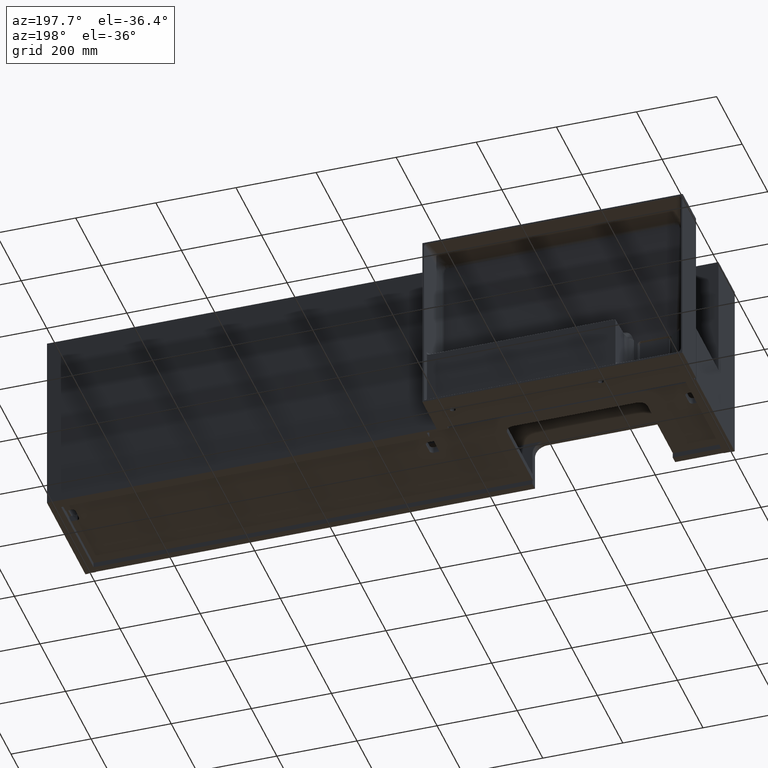
[diagram: clean part render]
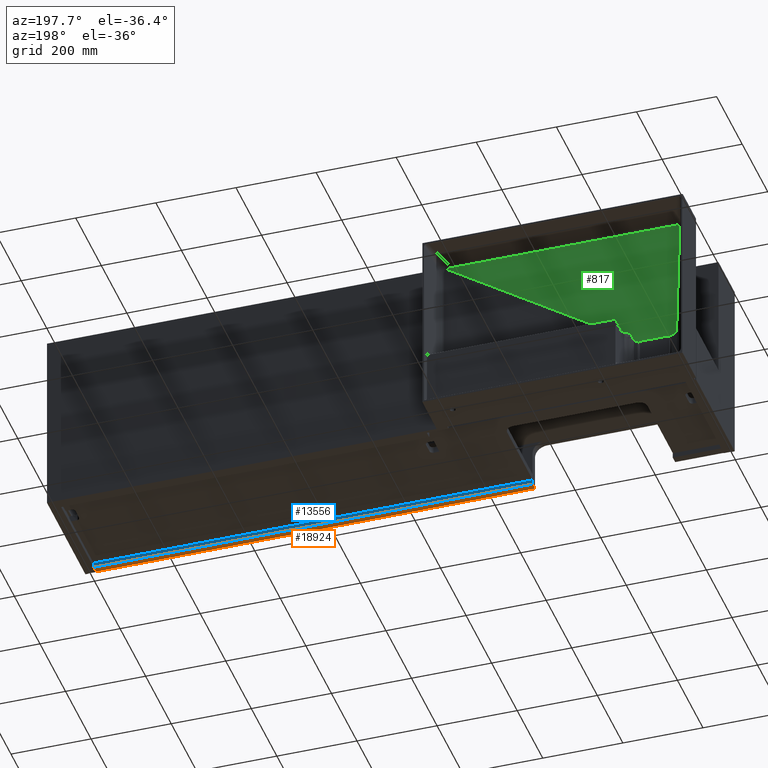
[diagram: same view with three faces highlighted in distinct colors, each labeled with its STEP entity id]
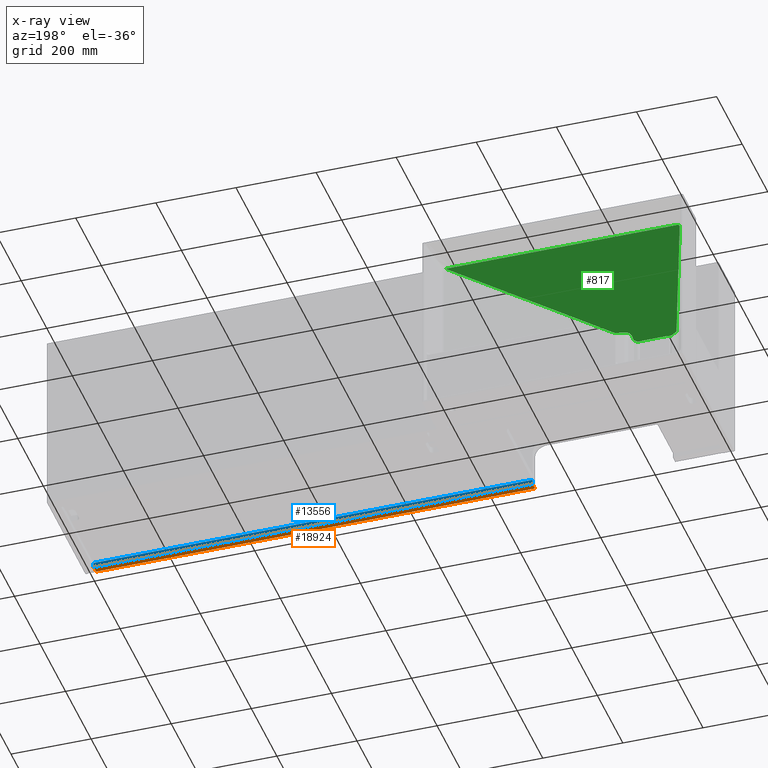
[diagram: x-ray of the same camera — body ghosted, the three highlighted faces saturated]
A machine part, auxiliary view with three faces highlighted in distinct colors.
The next image is the same camera in x-ray (body ghosted, the three faces saturated) — at least one of them is partly hidden behind the body in this view.
Their STEP definitions:

[orange] entity #18924 — the highlighted planar face has unit normal (0, 0, 1).
#126 = EDGE_CURVE ( 'NONE', #17838, #13490, #18997, .T. ) ;
#509 = DIRECTION ( 'NONE',  ( -1.000000000000000000, -0.0000000000000000000, -0.0000000000000000000 ) ) ;
#556 = CARTESIAN_POINT ( 'NONE',  ( 500.0000000000000000, 19.99999999999998934, -470.0000000000000568 ) ) ;
#1368 = ORIENTED_EDGE ( 'NONE', *, *, #3203, .T. ) ;
#2244 = VECTOR ( 'NONE', #18879, 1000.000000000000000 ) ;
#2520 = DIRECTION ( 'NONE',  ( 1.000000000000000000, 0.0000000000000000000, -0.0000000000000000000 ) ) ;
#2918 = VERTEX_POINT ( 'NONE', #16039 ) ;
#3203 = EDGE_CURVE ( 'NONE', #14724, #17838, #10571, .T. ) ;
#3959 = PLANE ( 'NONE',  #6774 ) ;
#4231 = CARTESIAN_POINT ( 'NONE',  ( 500.0000000000000000, 1.000000000000000888, -470.0000000000000568 ) ) ;
#4813 = EDGE_LOOP ( 'NONE', ( #1368, #9861, #14325, #5819 ) ) ;
#5819 = ORIENTED_EDGE ( 'NONE', *, *, #16825, .T. ) ;
#6375 = LINE ( 'NONE', #12262, #18211 ) ;
#6774 = AXIS2_PLACEMENT_3D ( 'NONE', #9850, #15781, #2520 ) ;
#7820 = LINE ( 'NONE', #13723, #9554 ) ;
#9518 = CARTESIAN_POINT ( 'NONE',  ( 29.00000000000002487, 1.000000000000000888, -470.0000000000000000 ) ) ;
#9554 = VECTOR ( 'NONE', #509, 1000.000000000000000 ) ;
#9850 = CARTESIAN_POINT ( 'NONE',  ( 29.00000000000002487, 19.99999999999998934, -470.0000000000000000 ) ) ;
#9861 = ORIENTED_EDGE ( 'NONE', *, *, #126, .T. ) ;
#10571 = LINE ( 'NONE', #9518, #17398 ) ;
#12262 = CARTESIAN_POINT ( 'NONE',  ( 1596.000000000000000, 19.99999999999998934, -470.0000000000000000 ) ) ;
#12312 = DIRECTION ( 'NONE',  ( -1.000000000000000000, -0.0000000000000000000, -0.0000000000000000000 ) ) ;
#13490 = VERTEX_POINT ( 'NONE', #556 ) ;
#13723 = CARTESIAN_POINT ( 'NONE',  ( 29.00000000000002487, 19.99999999999998934, -470.0000000000000000 ) ) ;
#14325 = ORIENTED_EDGE ( 'NONE', *, *, #18696, .F. ) ;
#14724 = VERTEX_POINT ( 'NONE', #16967 ) ;
#15781 = DIRECTION ( 'NONE',  ( 0.0000000000000000000, 0.0000000000000000000, 1.000000000000000000 ) ) ;
#16039 = CARTESIAN_POINT ( 'NONE',  ( 1596.000000000000000, 19.99999999999998934, -470.0000000000000000 ) ) ;
#16825 = EDGE_CURVE ( 'NONE', #2918, #14724, #6375, .T. ) ;
#16967 = CARTESIAN_POINT ( 'NONE',  ( 1596.000000000000000, 1.000000000000000888, -470.0000000000000000 ) ) ;
#17225 = FACE_OUTER_BOUND ( 'NONE', #4813, .T. ) ;
#17398 = VECTOR ( 'NONE', #12312, 1000.000000000000000 ) ;
#17838 = VERTEX_POINT ( 'NONE', #4231 ) ;
#18211 = VECTOR ( 'NONE', #18214, 1000.000000000000000 ) ;
#18214 = DIRECTION ( 'NONE',  ( -0.0000000000000000000, -1.000000000000000000, -0.0000000000000000000 ) ) ;
#18696 = EDGE_CURVE ( 'NONE', #2918, #13490, #7820, .T. ) ;
#18879 = DIRECTION ( 'NONE',  ( -0.0000000000000000000, 1.000000000000000000, -0.0000000000000000000 ) ) ;
#18897 = CARTESIAN_POINT ( 'NONE',  ( 500.0000000000000000, 0.9989999999999998881, -470.0000000000000568 ) ) ;
#18924 = ADVANCED_FACE ( 'NONE', ( #17225 ), #3959, .F. ) ;
#18997 = LINE ( 'NONE', #18897, #2244 ) ;

[blue] entity #13556 — the highlighted planar face has unit normal (-0, 1, 0).
#493 = EDGE_CURVE ( 'NONE', #11612, #13490, #14347, .T. ) ;
#509 = DIRECTION ( 'NONE',  ( -1.000000000000000000, -0.0000000000000000000, -0.0000000000000000000 ) ) ;
#556 = CARTESIAN_POINT ( 'NONE',  ( 500.0000000000000000, 19.99999999999998934, -470.0000000000000568 ) ) ;
#692 = CARTESIAN_POINT ( 'NONE',  ( 29.00000000000002487, 19.99999999999998934, -457.4999999999999432 ) ) ;
#1201 = ORIENTED_EDGE ( 'NONE', *, *, #493, .F. ) ;
#2414 = AXIS2_PLACEMENT_3D ( 'NONE', #3535, #9423, #15350 ) ;
#2558 = VECTOR ( 'NONE', #13338, 1000.000000000000000 ) ;
#2918 = VERTEX_POINT ( 'NONE', #16039 ) ;
#3535 = CARTESIAN_POINT ( 'NONE',  ( 0.0000000000000000000, 19.99999999999998934, 0.0000000000000000000 ) ) ;
#4237 = CARTESIAN_POINT ( 'NONE',  ( 1596.000000000000000, 19.99999999999998934, -470.0000000000000000 ) ) ;
#4863 = CARTESIAN_POINT ( 'NONE',  ( 1596.000000000000000, 19.99999999999998934, -457.5000000000001137 ) ) ;
#6557 = DIRECTION ( 'NONE',  ( -1.000000000000000000, -0.0000000000000000000, 1.062753373923251207E-16 ) ) ;
#6717 = VECTOR ( 'NONE', #6557, 1000.000000000000000 ) ;
#7348 = EDGE_LOOP ( 'NONE', ( #1201, #12870, #18186, #14021 ) ) ;
#7820 = LINE ( 'NONE', #13723, #9554 ) ;
#9423 = DIRECTION ( 'NONE',  ( -0.0000000000000000000, 1.000000000000000000, 0.0000000000000000000 ) ) ;
#9554 = VECTOR ( 'NONE', #509, 1000.000000000000000 ) ;
#9965 = VERTEX_POINT ( 'NONE', #4863 ) ;
#10122 = DIRECTION ( 'NONE',  ( -0.0000000000000000000, -0.0000000000000000000, -1.000000000000000000 ) ) ;
#10860 = FACE_OUTER_BOUND ( 'NONE', #7348, .T. ) ;
#11612 = VERTEX_POINT ( 'NONE', #18306 ) ;
#11988 = VECTOR ( 'NONE', #10122, 1000.000000000000000 ) ;
#12870 = ORIENTED_EDGE ( 'NONE', *, *, #14179, .F. ) ;
#13338 = DIRECTION ( 'NONE',  ( -0.0000000000000000000, -0.0000000000000000000, -1.000000000000000000 ) ) ;
#13490 = VERTEX_POINT ( 'NONE', #556 ) ;
#13556 = ADVANCED_FACE ( 'NONE', ( #10860 ), #16793, .T. ) ;
#13723 = CARTESIAN_POINT ( 'NONE',  ( 29.00000000000002487, 19.99999999999998934, -470.0000000000000000 ) ) ;
#13903 = LINE ( 'NONE', #692, #6717 ) ;
#14021 = ORIENTED_EDGE ( 'NONE', *, *, #18696, .T. ) ;
#14179 = EDGE_CURVE ( 'NONE', #9965, #11612, #13903, .T. ) ;
#14227 = CARTESIAN_POINT ( 'NONE',  ( 500.0000000000000000, 19.99999999999998934, -470.0000000000000568 ) ) ;
#14347 = LINE ( 'NONE', #14227, #2558 ) ;
#15350 = DIRECTION ( 'NONE',  ( 0.0000000000000000000, -0.0000000000000000000, 1.000000000000000000 ) ) ;
#16039 = CARTESIAN_POINT ( 'NONE',  ( 1596.000000000000000, 19.99999999999998934, -470.0000000000000000 ) ) ;
#16793 = PLANE ( 'NONE',  #2414 ) ;
#17168 = EDGE_CURVE ( 'NONE', #9965, #2918, #17510, .T. ) ;
#17510 = LINE ( 'NONE', #4237, #11988 ) ;
#18186 = ORIENTED_EDGE ( 'NONE', *, *, #17168, .T. ) ;
#18306 = CARTESIAN_POINT ( 'NONE',  ( 500.0000000000000000, 19.99999999999998934, -457.5000000000000000 ) ) ;
#18696 = EDGE_CURVE ( 'NONE', #2918, #13490, #7820, .T. ) ;

[green] entity #817 — the highlighted planar face has unit normal (0, 0.9989, -0.0471).
#21 = EDGE_CURVE ( 'NONE', #4707, #617, #5941, .T. ) ;
#23 = CARTESIAN_POINT ( 'NONE',  ( 31.65942971531320183, 337.4424095261252887, -36.93211820686300939 ) ) ;
#108 = CARTESIAN_POINT ( 'NONE',  ( 198.8552613548531269, 324.8220531439237675, -304.8234223945265171 ) ) ;
#116 = CARTESIAN_POINT ( 'NONE',  ( 36.86019171625553525, 337.7091892495751040, -31.26920617162236837 ) ) ;
#180 = CARTESIAN_POINT ( 'NONE',  ( 605.7270638256289885, 337.7249613011945257, -30.93441408255048586 ) ) ;
#202 = CARTESIAN_POINT ( 'NONE',  ( 184.6771654203995752, 324.6808296650964962, -307.8211619812079789 ) ) ;
#211 = CARTESIAN_POINT ( 'NONE',  ( 39.82943733341980419, 337.7231732248104663, -30.97236943816612253 ) ) ;
#264 = CARTESIAN_POINT ( 'NONE',  ( 42.27673548064053932, 328.3127408494356700, -230.7268712654124556 ) ) ;
#496 = DIRECTION ( 'NONE',  ( -0.8356163984689591873, -0.02584948056443473960, -0.5487048741940557806 ) ) ;
#515 = CARTESIAN_POINT ( 'NONE',  ( 607.2514038758652077, 337.7249613011945257, -30.93441408255048941 ) ) ;
#617 = VERTEX_POINT ( 'NONE', #9946 ) ;
#661 = CARTESIAN_POINT ( 'NONE',  ( 151.9093494116067973, 323.4650869982647237, -333.6276351671356792 ) ) ;
#727 = CARTESIAN_POINT ( 'NONE',  ( 136.0822418297966578, 322.9994056883926987, -343.5126154053624532 ) ) ;
#759 = EDGE_CURVE ( 'NONE', #5999, #9667, #15935, .T. ) ;
#784 = VERTEX_POINT ( 'NONE', #13356 ) ;
#817 = ADVANCED_FACE ( 'NONE', ( #11721 ), #13651, .T. ) ;
#871 = CARTESIAN_POINT ( 'NONE',  ( 614.6151535243348007, 337.6820198651380451, -31.84592854065964573 ) ) ;
#950 = CARTESIAN_POINT ( 'NONE',  ( 43.58903264293867608, 323.4151811651100843, -334.6869823302010900 ) ) ;
#1037 = LINE ( 'NONE', #6904, #9399 ) ;
#1343 = EDGE_CURVE ( 'NONE', #11090, #17615, #18734, .T. ) ;
#1384 = CARTESIAN_POINT ( 'NONE',  ( 31.44963585070672352, 337.2969522031865495, -40.01972926677356668 ) ) ;
#1430 = ORIENTED_EDGE ( 'NONE', *, *, #11484, .T. ) ;
#1476 = B_SPLINE_CURVE_WITH_KNOTS ( 'NONE', 3,
 ( #14963, #1714, #7580, #13483, #264, #6143, #12027 ),
 .UNSPECIFIED., .F., .F.,
 ( 4, 3, 4 ),
 ( 0.1670895822075200154, 0.1769420931094206617, 0.4596356071045462066 ),
 .UNSPECIFIED. ) ;
#1479 = CARTESIAN_POINT ( 'NONE',  ( 31.64921863133575286, 337.4389033807434544, -37.00654287686315058 ) ) ;
#1575 = CARTESIAN_POINT ( 'NONE',  ( 35.52471648068633669, 337.6951683208129680, -31.56682731466130321 ) ) ;
#1623 = ORIENTED_EDGE ( 'NONE', *, *, #4760, .T. ) ;
#1633 = CARTESIAN_POINT ( 'NONE',  ( 230.1540286831982769, 337.7249613011945257, -30.93441408255048941 ) ) ;
#1657 = CARTESIAN_POINT ( 'NONE',  ( 191.0590375558673202, 324.7265386575342063, -306.8509008232537099 ) ) ;
#1666 = CARTESIAN_POINT ( 'NONE',  ( 39.62838415155368210, 337.7227705156498700, -30.98091771358729218 ) ) ;
#1693 = CARTESIAN_POINT ( 'NONE',  ( 140.0102767966331498, 323.0000000000000000, -343.4999999999999432 ) ) ;
#1714 = CARTESIAN_POINT ( 'NONE',  ( 43.54762550520556630, 323.5697147069264474, -331.4067110918793446 ) ) ;
#1785 = LINE ( 'NONE', #7656, #12228 ) ;
#2037 = CARTESIAN_POINT ( 'NONE',  ( 947.2733949437900947, 323.0000000000000000, -343.4999999999999432 ) ) ;
#2076 = VERTEX_POINT ( 'NONE', #12131 ) ;
#2083 = ORIENTED_EDGE ( 'NONE', *, *, #5906, .T. ) ;
#2094 = CARTESIAN_POINT ( 'NONE',  ( 152.6018373482059189, 323.5696781237315349, -331.4074876404581573 ) ) ;
#2173 = CARTESIAN_POINT ( 'NONE',  ( 136.0896772982212042, 322.9996506961233536, -343.5074146456903463 ) ) ;
#2283 = CARTESIAN_POINT ( 'NONE',  ( 65.01027679663317826, 323.0448930965661134, -342.5470577990107586 ) ) ;
#2315 = CARTESIAN_POINT ( 'NONE',  ( 614.7307329588620632, 337.6904979936178961, -31.66596397969334475 ) ) ;
#2830 = CARTESIAN_POINT ( 'NONE',  ( 31.44993942179330304, 337.2059713113148973, -41.95097344416078755 ) ) ;
#2926 = CARTESIAN_POINT ( 'NONE',  ( 31.57204790205884493, 337.4084254359669899, -37.65349579386656131 ) ) ;
#3016 = CARTESIAN_POINT ( 'NONE',  ( 33.06521418116045652, 337.6280492918525056, -32.99155762016702909 ) ) ;
#3101 = CARTESIAN_POINT ( 'NONE',  ( 194.2290445181041321, 324.7556448546313845, -306.2330658854564263 ) ) ;
#3109 = CARTESIAN_POINT ( 'NONE',  ( 38.11723292552262166, 337.7179151106905692, -31.08398300964589467 ) ) ;
#3135 = CARTESIAN_POINT ( 'NONE',  ( 165.5328698598229664, 324.5060946015510694, -311.5302493193846658 ) ) ;
#3299 = CARTESIAN_POINT ( 'NONE',  ( 57.01027679663312142, 323.0000000000000000, -343.4999999999999432 ) ) ;
#3336 = CARTESIAN_POINT ( 'NONE',  ( 160.6749666268192129, 324.3425752415761281, -315.0012618072242390 ) ) ;
#3427 = CARTESIAN_POINT ( 'NONE',  ( 160.9093358001838396, 324.3526674264662120, -314.7870357988255705 ) ) ;
#3543 = CARTESIAN_POINT ( 'NONE',  ( 153.3386852661365367, 323.7115601592879557, -328.3957689223034890 ) ) ;
#3617 = CARTESIAN_POINT ( 'NONE',  ( 136.1059053335791589, 322.9999044965674102, -343.5020272437901099 ) ) ;
#3634 = CARTESIAN_POINT ( 'NONE',  ( 150.2991523776123302, 323.3203450831405235, -336.7000603220984090 ) ) ;
#3915 = ORIENTED_EDGE ( 'NONE', *, *, #14089, .T. ) ;
#3921 = CARTESIAN_POINT ( 'NONE',  ( 42.74859612466858039, 337.7249613011945257, -30.93441408255037572 ) ) ;
#4078 = VERTEX_POINT ( 'NONE', #12860 ) ;
#4103 = DIRECTION ( 'NONE',  ( -0.8356163984689591873, -0.02584948056443473960, -0.5487048741940557806 ) ) ;
#4109 = EDGE_CURVE ( 'NONE', #2076, #15830, #6582, .T. ) ;
#4195 = CARTESIAN_POINT ( 'NONE',  ( 614.7307329588620632, 337.6904979936178961, -31.66596397969334475 ) ) ;
#4294 = CARTESIAN_POINT ( 'NONE',  ( 613.7326041029118642, 337.7061628689490931, -31.33344691319027575 ) ) ;
#4360 = CARTESIAN_POINT ( 'NONE',  ( 31.45493045476341365, 337.3104557418099603, -39.73309072318618718 ) ) ;
#4379 = CARTESIAN_POINT ( 'NONE',  ( 612.4860492557526186, 337.7163766206677451, -31.11664041536960923 ) ) ;
#4456 = CARTESIAN_POINT ( 'NONE',  ( 32.81385612067034430, 337.6126847321252171, -33.31769991116124885 ) ) ;
#4477 = CARTESIAN_POINT ( 'NONE',  ( 610.9881485329336783, 337.7211485507808675, -31.01534703324468012 ) ) ;
#4546 = CARTESIAN_POINT ( 'NONE',  ( 196.8433714277376794, 324.7865976977785181, -305.5760323383929062 ) ) ;
#4553 = CARTESIAN_POINT ( 'NONE',  ( 37.05224080859341740, 337.7107519828326758, -31.23603415668612371 ) ) ;
#4644 = CARTESIAN_POINT ( 'NONE',  ( 173.9812721945679925, 324.6229568114036965, -309.0496244574869706 ) ) ;
#4653 = CARTESIAN_POINT ( 'NONE',  ( 40.48605653875704746, 337.7243832176263822, -30.94668501661392312 ) ) ;
#4707 = VERTEX_POINT ( 'NONE', #515 ) ;
#4760 = EDGE_CURVE ( 'NONE', #12931, #2076, #9593, .T. ) ;
#4957 = CARTESIAN_POINT ( 'NONE',  ( 947.2733949437900947, 323.0000000000000000, -343.4999999999999432 ) ) ;
#5058 = CARTESIAN_POINT ( 'NONE',  ( 136.1265005401955932, 323.0000000000000000, -343.4999999999999432 ) ) ;
#5076 = CARTESIAN_POINT ( 'NONE',  ( 150.9887181297819723, 323.3646822769986784, -335.7589182238183980 ) ) ;
#5116 = CARTESIAN_POINT ( 'NONE',  ( 60.88717117101566600, 323.0000000000000000, -343.4999999999999432 ) ) ;
#5148 = CARTESIAN_POINT ( 'NONE',  ( 173.9812721945679925, 324.6229568114036965, -309.0496244574869706 ) ) ;
#5151 = CARTESIAN_POINT ( 'NONE',  ( 136.0781949904821886, 322.9991501576077439, -343.5180395370722977 ) ) ;
#5640 = CARTESIAN_POINT ( 'NONE',  ( 610.9879424011658102, 337.7211491971753503, -31.01533331228320378 ) ) ;
#5650 = ORIENTED_EDGE ( 'NONE', *, *, #12754, .T. ) ;
#5709 = CARTESIAN_POINT ( 'NONE',  ( 173.9812721945679925, 324.6229568114036965, -309.0496244574869706 ) ) ;
#5742 = CARTESIAN_POINT ( 'NONE',  ( 610.9848112725181863, 337.7211591309978189, -31.01512244782314198 ) ) ;
#5743 = DIRECTION ( 'NONE',  ( 0.0000000000000000000, 0.9988921681304054889, -0.04705779901076869581 ) ) ;
#5818 = CARTESIAN_POINT ( 'NONE',  ( 31.45463975731429329, 337.3098456733877128, -39.74604059720934401 ) ) ;
#5842 = CARTESIAN_POINT ( 'NONE',  ( 610.9801094671159944, 337.7211740171513839, -31.01480646062110580 ) ) ;
#5843 = DIRECTION ( 'NONE',  ( 0.0000000000000000000, 0.04705779901076868887, 0.9988921681304053779 ) ) ;
#5868 = CARTESIAN_POINT ( 'NONE',  ( 132.0102767966330646, 323.0448930965661134, -342.5470577990107586 ) ) ;
#5869 = ORIENTED_EDGE ( 'NONE', *, *, #759, .T. ) ;
#5906 = EDGE_CURVE ( 'NONE', #13899, #784, #16798, .T. ) ;
#5909 = CARTESIAN_POINT ( 'NONE',  ( 31.79138293893016254, 337.4867901769694072, -35.99005365057880113 ) ) ;
#5941 = B_SPLINE_CURVE_WITH_KNOTS ( 'NONE', 3,
 ( #10079, #9981, #8822, #8722, #8625, #8528, #7267, #7168, #7072, #5842, #5742, #5640, #4477, #4379, #4294, #4195 ),
 .UNSPECIFIED., .F., .F.,
 ( 4, 1, 1, 1, 1, 1, 1, 1, 1, 2, 2, 4 ),
 ( 0.0000000000000000000, 0.2499999999947719598, 0.3749999999921356797, 0.4374999999908175119, 0.4687499999901583725, 0.4843749999898610548, 0.4921874999897125069, 0.4960937499896722058, 0.4980468749896863057, 0.4990234374897277170, 0.4999999999897691838, 1.000000000000000000 ),
 .UNSPECIFIED. ) ;
#5969 = CARTESIAN_POINT ( 'NONE',  ( 153.3386852661365367, 323.7115601592879557, -328.3957689223034890 ) ) ;
#5994 = CARTESIAN_POINT ( 'NONE',  ( 198.3646758481632162, 324.8115746191032827, -305.0458492099912178 ) ) ;
#5999 = VERTEX_POINT ( 'NONE', #5148 ) ;
#6003 = CARTESIAN_POINT ( 'NONE',  ( 36.96316991177909728, 337.7100393581155799, -31.25116098504260265 ) ) ;
#6064 = CARTESIAN_POINT ( 'NONE',  ( 606.4892338507468139, 337.7249613011945257, -30.93441408255048231 ) ) ;
#6086 = CARTESIAN_POINT ( 'NONE',  ( 182.5415527639360107, 324.6680791695545736, -308.0918157390207739 ) ) ;
#6095 = CARTESIAN_POINT ( 'NONE',  ( 39.84183533638114483, 337.7231963920153817, -30.97187766974809975 ) ) ;
#6143 = CARTESIAN_POINT ( 'NONE',  ( 32.64613986560082992, 332.7416904846292596, -136.7139085548854780 ) ) ;
#6237 = AXIS2_PLACEMENT_3D ( 'NONE', #4957, #5743, #5843 ) ;
#6406 = CARTESIAN_POINT ( 'NONE',  ( 156.6789448886715661, 324.1125682670271431, -319.8836016174569181 ) ) ;
#6521 = CARTESIAN_POINT ( 'NONE',  ( 151.6379731480167834, 323.4309747735022142, -334.3517326572265915 ) ) ;
#6524 = EDGE_CURVE ( 'NONE', #15830, #16765, #7127, .T. ) ;
#6582 = B_SPLINE_CURVE_WITH_KNOTS ( 'NONE', 3,
 ( #12769, #12743, #12693, #12675, #12582, #12553, #12482, #12459, #12438, #12395, #12350, #12282, #12255 ),
 .UNSPECIFIED., .F., .F.,
 ( 4, 3, 3, 3, 4 ),
 ( 0.0000000000000000000, 8.915617227922920056E-06, 2.010108594511868696E-05, 4.157102085746201023E-05, 6.097989384569849384E-05 ),
 .UNSPECIFIED. ) ;
#6597 = CARTESIAN_POINT ( 'NONE',  ( 136.0803799028212495, 322.9993131088632481, -343.5145805836912132 ) ) ;
#6736 = CARTESIAN_POINT ( 'NONE',  ( 614.5730550858115748, 337.6804219453646283, -31.87984745698001277 ) ) ;
#6763 = CARTESIAN_POINT ( 'NONE',  ( 172.6972624792435624, 324.6167240759052106, -309.1819262396854242 ) ) ;
#6904 = CARTESIAN_POINT ( 'NONE',  ( 309.2805134373838882, 315.1961146394703519, -509.1524557350587656 ) ) ;
#6948 = CARTESIAN_POINT ( 'NONE',  ( 170.8233128626981738, 324.6005407954646671, -309.5254474503369124 ) ) ;
#7006 = CARTESIAN_POINT ( 'NONE',  ( 60.94268838823935397, 322.9991196170648777, -343.5186878187531647 ) ) ;
#7072 = CARTESIAN_POINT ( 'NONE',  ( 610.9691028008342073, 337.7212086494498635, -31.01407132356525409 ) ) ;
#7127 = LINE ( 'NONE', #13021, #13984 ) ;
#7168 = CARTESIAN_POINT ( 'NONE',  ( 610.9469463202289035, 337.7212775058079046, -31.01260971511728926 ) ) ;
#7246 = CARTESIAN_POINT ( 'NONE',  ( 31.45212232839229927, 337.3040158536455806, -39.86978971859588938 ) ) ;
#7267 = CARTESIAN_POINT ( 'NONE',  ( 610.9020607668498997, 337.7214135855660970, -31.00972116087522323 ) ) ;
#7268 = CARTESIAN_POINT ( 'NONE',  ( 157.1944950747820826, 324.1510661865222005, -319.0664093330512401 ) ) ;
#7295 = CARTESIAN_POINT ( 'NONE',  ( 136.0778652050268533, 322.9991196170648777, -343.5186878187531647 ) ) ;
#7340 = EDGE_CURVE ( 'NONE', #4078, #11217, #11442, .T. ) ;
#7344 = CARTESIAN_POINT ( 'NONE',  ( 31.65443224008954815, 337.4407030556049563, -36.96834132128434192 ) ) ;
#7425 = CARTESIAN_POINT ( 'NONE',  ( 199.3272960926468897, 324.8349497930412326, -304.5496662463541497 ) ) ;
#7434 = CARTESIAN_POINT ( 'NONE',  ( 36.26356644346566327, 337.7036647164929946, -31.38647499728559254 ) ) ;
#7499 = CARTESIAN_POINT ( 'NONE',  ( 417.5594612418547626, 337.7249613011945257, -30.93441408255048941 ) ) ;
#7522 = CARTESIAN_POINT ( 'NONE',  ( 188.9359916805834985, 324.7100343581348625, -307.2012362778855845 ) ) ;
#7533 = CARTESIAN_POINT ( 'NONE',  ( 39.74294081932458766, 337.7230061920806179, -30.97591502867769009 ) ) ;
#7580 = CARTESIAN_POINT ( 'NONE',  ( 43.50621836747236415, 323.7242482487427537, -328.1264398535574287 ) ) ;
#7656 = CARTESIAN_POINT ( 'NONE',  ( 65.01027679663317826, 323.0448930965661134, -342.5470577990107586 ) ) ;
#7891 = ORIENTED_EDGE ( 'NONE', *, *, #8503, .T. ) ;
#7903 = DIRECTION ( 'NONE',  ( -1.000000000000000000, 0.0000000000000000000, 0.0000000000000000000 ) ) ;
#7960 = CARTESIAN_POINT ( 'NONE',  ( 152.3914831439631428, 323.5344834360790855, -332.1545624844750932 ) ) ;
#7977 = VERTEX_POINT ( 'NONE', #17016 ) ;
#7990 = EDGE_CURVE ( 'NONE', #617, #11090, #18969, .T. ) ;
#8029 = VERTEX_POINT ( 'NONE', #15764 ) ;
#8030 = CARTESIAN_POINT ( 'NONE',  ( 136.0868194003566600, 322.9995765522121474, -343.5089884926148329 ) ) ;
#8120 = VECTOR ( 'NONE', #4103, 1000.000000000000114 ) ;
#8182 = CARTESIAN_POINT ( 'NONE',  ( 614.7148602358179232, 337.6880379785537230, -31.71818252439097208 ) ) ;
#8503 = EDGE_CURVE ( 'NONE', #16765, #14350, #1037, .T. ) ;
#8528 = CARTESIAN_POINT ( 'NONE',  ( 610.8099992914212635, 337.7216792132541059, -31.00408270300662750 ) ) ;
#8530 = CARTESIAN_POINT ( 'NONE',  ( 65.01027679663317826, 323.0448930965661134, -342.5470577990107586 ) ) ;
#8583 = CARTESIAN_POINT ( 'NONE',  ( 167.7033499628446407, 324.5512903870404671, -310.5708819646215488 ) ) ;
#8625 = CARTESIAN_POINT ( 'NONE',  ( 610.6167148658776114, 337.7221843413141755, -30.99336038973169138 ) ) ;
#8696 = CARTESIAN_POINT ( 'NONE',  ( 31.44346606484955231, 337.2455879155479010, -41.11003492752288935 ) ) ;
#8722 = CARTESIAN_POINT ( 'NONE',  ( 610.1935001160476304, 337.7230900881704656, -30.97413417303106087 ) ) ;
#8760 = ORIENTED_EDGE ( 'NONE', *, *, #4109, .T. ) ;
#8802 = CARTESIAN_POINT ( 'NONE',  ( 31.61432034613362418, 337.4260890056385733, -37.27855260109164703 ) ) ;
#8822 = CARTESIAN_POINT ( 'NONE',  ( 609.2004870214182120, 337.7244835448296385, -30.94455537902636166 ) ) ;
#8887 = B_SPLINE_CURVE_WITH_KNOTS ( 'NONE', 3,
 ( #14875, #1633, #7499, #13398, #180, #6064, #11949 ),
 .UNSPECIFIED., .F., .F.,
 ( 4, 3, 4 ),
 ( -0.8152679471926076449, -0.2530516495166379443, -0.2507651394412844237 ),
 .UNSPECIFIED. ) ;
#8899 = CARTESIAN_POINT ( 'NONE',  ( 33.47409499779444531, 337.6497692400748747, -32.53051000154228944 ) ) ;
#8979 = CARTESIAN_POINT ( 'NONE',  ( 193.7021115397274968, 324.7503751772954956, -306.3449249084007988 ) ) ;
#8989 = CARTESIAN_POINT ( 'NONE',  ( 38.95957256948083369, 337.7210452700792302, -31.01753936451011384 ) ) ;
#9399 = VECTOR ( 'NONE', #12787, 1000.000000000000114 ) ;
#9429 = CARTESIAN_POINT ( 'NONE',  ( 153.1702101777403584, 323.6758977246932432, -329.1527725935775379 ) ) ;
#9506 = CARTESIAN_POINT ( 'NONE',  ( 136.0989864779814127, 322.9998379681751430, -343.5034394366964534 ) ) ;
#9526 = CARTESIAN_POINT ( 'NONE',  ( 150.1562415174112175, 323.3138616215977663, -336.8376842461541401 ) ) ;
#9593 =( BOUNDED_CURVE ( )  B_SPLINE_CURVE ( 3, ( #2283, #18452, #11062, #7006 ),
 .UNSPECIFIED., .F., .F. ) 
 B_SPLINE_CURVE_WITH_KNOTS ( ( 4, 4 ),
 ( 0.0000000000000000000, 0.4689549082927684243 ),
 .UNSPECIFIED. ) 
 CURVE ( )  GEOMETRIC_REPRESENTATION_ITEM ( )  RATIONAL_B_SPLINE_CURVE ( ( 1.000000000000000000, 0.9817572531261227198, 0.9817572531261227198, 1.000000000000000000 ) ) 
 REPRESENTATION_ITEM ( '' )  );
#9667 = VERTEX_POINT ( 'NONE', #5969 ) ;
#9946 = CARTESIAN_POINT ( 'NONE',  ( 614.7307329588620632, 337.6904979936178961, -31.66596397969334475 ) ) ;
#9981 = CARTESIAN_POINT ( 'NONE',  ( 608.0980467775013949, 337.7249613013017324, -30.93441408027375061 ) ) ;
#10079 = CARTESIAN_POINT ( 'NONE',  ( 607.2514038758652077, 337.7249613011945257, -30.93441408255048941 ) ) ;
#10111 = VECTOR ( 'NONE', #7903, 1000.000000000000000 ) ;
#10225 = CARTESIAN_POINT ( 'NONE',  ( 166.9805683553175015, 324.5369300935274168, -310.8757067763182249 ) ) ;
#10243 = CARTESIAN_POINT ( 'NONE',  ( 31.46718212441191298, 337.3357435706770389, -39.19630798503469293 ) ) ;
#10259 = CARTESIAN_POINT ( 'NONE',  ( 136.0778652050268533, 322.9991196170648777, -343.5186878187531647 ) ) ;
#10342 = CARTESIAN_POINT ( 'NONE',  ( 32.93843571188575226, 337.6205960802620325, -33.14976635159611362 ) ) ;
#10431 = CARTESIAN_POINT ( 'NONE',  ( 195.8048643806829148, 324.7731144977070699, -305.8622391571529420 ) ) ;
#10440 = CARTESIAN_POINT ( 'NONE',  ( 37.06089926897163167, 337.7108201647723149, -31.23458686405577822 ) ) ;
#10513 = CARTESIAN_POINT ( 'NONE',  ( 168.7281519838337545, 324.5697004915298294, -310.1800921364654187 ) ) ;
#10537 = CARTESIAN_POINT ( 'NONE',  ( 41.44946198263772885, 337.7249613013299268, -30.93441407967685208 ) ) ;
#10555 = CARTESIAN_POINT ( 'NONE',  ( 156.7658629624830269, 324.1191833721571243, -319.7431833054127992 ) ) ;
#10656 = CARTESIAN_POINT ( 'NONE',  ( 153.3386852661365367, 323.7115601592879557, -328.3957689223034890 ) ) ;
#10665 = CARTESIAN_POINT ( 'NONE',  ( 162.1100358212860897, 324.4011164043857889, -313.7586131863121182 ) ) ;
#10750 = CARTESIAN_POINT ( 'NONE',  ( 156.5240488746704841, 324.1005293085399330, -320.1391516346337767 ) ) ;
#10765 = EDGE_CURVE ( 'NONE', #14350, #8029, #1476, .T. ) ;
#10905 = ORIENTED_EDGE ( 'NONE', *, *, #10765, .T. ) ;
#10948 = CARTESIAN_POINT ( 'NONE',  ( 136.1195970704762601, 322.9999859263438680, -343.5002987403824477 ) ) ;
#10951 = CARTESIAN_POINT ( 'NONE',  ( 158.2793953884630014, 324.2250485136340785, -317.4959923419093570 ) ) ;
#10967 = CARTESIAN_POINT ( 'NONE',  ( 150.6696253894093047, 323.3415801710642086, -336.2493047945955027 ) ) ;
#10973 = CARTESIAN_POINT ( 'NONE',  ( 160.5572078355069721, 324.3373967013740184, -315.1111862694599495 ) ) ;
#10977 = B_SPLINE_CURVE_WITH_KNOTS ( 'NONE', 3,
 ( #7425, #13322, #108, #5994, #11873, #17817, #4546, #10431, #16375, #3101, #8979, #14899, #1657, #7522, #13422, #202, #6086, #11973, #17919, #4644 ),
 .UNSPECIFIED., .F., .F.,
 ( 4, 2, 2, 2, 2, 2, 2, 2, 2, 4 ),
 ( 0.0000000000000000000, 0.0008055719474761910805, 0.001611143894952382161, 0.003222287789904821568, 0.004833431684857261192, 0.006444575579809700382, 0.009666863369714499832, 0.01288915115961929841, 0.01933372673942889558, 0.02577830231923849275 ),
 .UNSPECIFIED. ) ;
#10986 = VERTEX_POINT ( 'NONE', #3921 ) ;
#11044 = CARTESIAN_POINT ( 'NONE',  ( 136.0778652050268533, 322.9991196170648777, -343.5186878187531647 ) ) ;
#11062 = CARTESIAN_POINT ( 'NONE',  ( 62.20930800674245376, 323.0293517532738861, -342.8769526607152898 ) ) ;
#11090 = VERTEX_POINT ( 'NONE', #12968 ) ;
#11217 = VERTEX_POINT ( 'NONE', #1693 ) ;
#11243 = EDGE_CURVE ( 'NONE', #784, #12931, #1785, .T. ) ;
#11354 = B_SPLINE_CURVE_WITH_KNOTS ( 'NONE', 3,
 ( #16092, #2830, #8696, #14623, #1384, #7246, #13142, #19090, #5818, #11699, #17629, #4360, #10243, #16185, #2926, #8802, #14722, #1479, #7344, #13244, #23, #5909, #11786, #17721, #4456, #10342, #16282, #3016, #8899, #14822, #1575, #7434, #13333, #116, #6003, #11880, #17824, #4553, #10440, #16383, #3109, #8989, #14910, #1666, #7533, #13431, #211, #6095, #11983, #17928, #4653, #10537, #16479 ),
 .UNSPECIFIED., .F., .F.,
 ( 4, 1, 1, 1, 1, 1, 1, 1, 2, 2, 1, 1, 1, 1, 1, 2, 2, 1, 1, 1, 2, 2, 1, 1, 1, 1, 1, 1, 1, 2, 2, 1, 1, 1, 1, 1, 1, 1, 2, 2, 4 ),
 ( 0.0000000000000000000, 0.06249999999990177302, 0.09374999999985265953, 0.1093749999998281097, 0.1171874999998152311, 0.1210937499998094302, 0.1230468749998067796, 0.1240234374998054612, 0.1245117187498054750, 0.1249999999998055167, 0.1874999999998187838, 0.2187499999998252509, 0.2343749999998286648, 0.2421874999998305245, 0.2460937499998309408, 0.2480468749998311073, 0.2499999999998312461, 0.3749999999998253064, 0.4374999999998233080, 0.4687499999998223643, 0.4843749999998218092, 0.4999999999998213651, 0.6249999999998214761, 0.6874999999998213651, 0.7187499999998212541, 0.7343749999998209210, 0.7421874999998213651, 0.7460937499998219202, 0.7480468749998228084, 0.7490234374998235856, 0.7499999999998243627, 0.8124999999998844258, 0.8437499999999145128, 0.8593749999999295008, 0.8671874999999369393, 0.8710937499999407141, 0.8730468749999429345, 0.8740234374999440448, 0.8745117187499445999, 0.8749999999999451550, 1.000000000000000000 ),
 .UNSPECIFIED. ) ;
#11442 = LINE ( 'NONE', #17372, #8120 ) ;
#11484 = EDGE_CURVE ( 'NONE', #8029, #10986, #11354, .T. ) ;
#11536 = EDGE_LOOP ( 'NONE', ( #3915, #11671, #2083, #12895, #1623, #8760, #18026, #7891, #10905, #1430, #18860, #13588, #17334, #17539, #16076, #5869, #5650, #12840 ) ) ;
#11671 = ORIENTED_EDGE ( 'NONE', *, *, #14709, .T. ) ;
#11699 = CARTESIAN_POINT ( 'NONE',  ( 31.45480434768541045, 337.3101918600735871, -39.73869211987759797 ) ) ;
#11721 = FACE_OUTER_BOUND ( 'NONE', #11536, .T. ) ;
#11786 = CARTESIAN_POINT ( 'NONE',  ( 32.06997352170989046, 337.5429848699278068, -34.79721335913865943 ) ) ;
#11873 = CARTESIAN_POINT ( 'NONE',  ( 198.1148904920751477, 324.8069209751066637, -305.1446317420965215 ) ) ;
#11880 = CARTESIAN_POINT ( 'NONE',  ( 37.01503836490462618, 337.7104568430673339, -31.24229906507736487 ) ) ;
#11949 = CARTESIAN_POINT ( 'NONE',  ( 607.2514038758652077, 337.7249613011945257, -30.93441408255048941 ) ) ;
#11973 = CARTESIAN_POINT ( 'NONE',  ( 178.2644837121266335, 324.6443237527145129, -308.5960700885869983 ) ) ;
#11983 = CARTESIAN_POINT ( 'NONE',  ( 39.85010461055444608, 337.7232117706647614, -30.97155122837533625 ) ) ;
#11986 = B_SPLINE_CURVE_WITH_KNOTS ( 'NONE', 3,
 ( #3543, #9429, #15359, #2094, #7960, #13874, #661, #6521, #12403, #18350, #5076, #10967, #16891, #3634, #9526, #15452 ),
 .UNSPECIFIED., .F., .F.,
 ( 4, 2, 2, 2, 2, 2, 2, 4 ),
 ( 0.0000000000000000000, 0.002327619205670100264, 0.004655238411340200527, 0.005819048014175237649, 0.006982857617010276505, 0.008146667219845313626, 0.008728572021262901576, 0.009310476822680489525 ),
 .UNSPECIFIED. ) ;
#12027 = CARTESIAN_POINT ( 'NONE',  ( 31.45806411650215040, 337.1756495435058127, -42.59461120506236398 ) ) ;
#12131 = CARTESIAN_POINT ( 'NONE',  ( 60.94268838823935397, 322.9991196170648777, -343.5186878187531647 ) ) ;
#12207 = CARTESIAN_POINT ( 'NONE',  ( 161.2636818977416056, 324.3676109992985062, -314.4698297632739354 ) ) ;
#12228 = VECTOR ( 'NONE', #13557, 1000.000000000000000 ) ;
#12255 = CARTESIAN_POINT ( 'NONE',  ( 60.88717117101566600, 323.0000000000000000, -343.4999999999999432 ) ) ;
#12282 = CARTESIAN_POINT ( 'NONE',  ( 60.89366864789894862, 323.0000000000000000, -343.4999999999999432 ) ) ;
#12350 = CARTESIAN_POINT ( 'NONE',  ( 60.90018315897700774, 322.9999873542472528, -343.5002684303900651 ) ) ;
#12395 = CARTESIAN_POINT ( 'NONE',  ( 60.90663676467706011, 322.9999518831746173, -343.5010213720365186 ) ) ;
#12403 = CARTESIAN_POINT ( 'NONE',  ( 151.4924851980912592, 323.4141081283001427, -334.7097595974752267 ) ) ;
#12438 = CARTESIAN_POINT ( 'NONE',  ( 60.91374115691158408, 322.9999128351718696, -343.5018502408944414 ) ) ;
#12459 = CARTESIAN_POINT ( 'NONE',  ( 60.92090942391371300, 322.9998476346298730, -343.5032342476291660 ) ) ;
#12473 = CARTESIAN_POINT ( 'NONE',  ( 136.0789525232673611, 322.9992087463477333, -343.5167958785330029 ) ) ;
#12482 = CARTESIAN_POINT ( 'NONE',  ( 60.92751258604878473, 322.9997182540301424, -343.5059805993602140 ) ) ;
#12553 = CARTESIAN_POINT ( 'NONE',  ( 60.93096208018199178, 322.9996506655610915, -343.5074152944335992 ) ) ;
#12582 = CARTESIAN_POINT ( 'NONE',  ( 60.93431185951079243, 322.9995629513521749, -343.5092771969899559 ) ) ;
#12622 = CARTESIAN_POINT ( 'NONE',  ( 614.5277192395961947, 337.6790194979284934, -31.90961709749989694 ) ) ;
#12675 = CARTESIAN_POINT ( 'NONE',  ( 60.93713938520767215, 322.9994480009252129, -343.5117172405884958 ) ) ;
#12693 = CARTESIAN_POINT ( 'NONE',  ( 60.93938825351768429, 322.9993565752760105, -343.5136579255944298 ) ) ;
#12743 = CARTESIAN_POINT ( 'NONE',  ( 60.94134209400608881, 322.9992442937479495, -343.5160413166883018 ) ) ;
#12754 = EDGE_CURVE ( 'NONE', #9667, #4078, #11986, .T. ) ;
#12769 = CARTESIAN_POINT ( 'NONE',  ( 60.94268838823935397, 322.9991196170648777, -343.5186878187531647 ) ) ;
#12787 = DIRECTION ( 'NONE',  ( -0.8356163984689579660, 0.02584948056443482980, 0.5487048741940574459 ) ) ;
#12840 = ORIENTED_EDGE ( 'NONE', *, *, #7340, .T. ) ;
#12860 = CARTESIAN_POINT ( 'NONE',  ( 149.9914699862139287, 323.3087644759445425, -336.9458809527553740 ) ) ;
#12895 = ORIENTED_EDGE ( 'NONE', *, *, #11243, .T. ) ;
#12931 = VERTEX_POINT ( 'NONE', #8530 ) ;
#12968 = CARTESIAN_POINT ( 'NONE',  ( 614.5277192395961947, 337.6790194979284934, -31.90961709749989694 ) ) ;
#13021 = CARTESIAN_POINT ( 'NONE',  ( 947.2733949437900947, 323.0000000000000000, -343.4999999999999432 ) ) ;
#13142 = CARTESIAN_POINT ( 'NONE',  ( 31.45352180081090765, 337.3073872791450754, -39.79822473685867124 ) ) ;
#13193 = CARTESIAN_POINT ( 'NONE',  ( 134.8112455865237393, 323.0293517532738861, -342.8769526607153466 ) ) ;
#13244 = CARTESIAN_POINT ( 'NONE',  ( 31.65792970682426599, 337.4418998912123584, -36.94293618675117585 ) ) ;
#13322 = CARTESIAN_POINT ( 'NONE',  ( 199.0965661181186306, 324.8278122476277758, -304.7011743568678526 ) ) ;
#13333 = CARTESIAN_POINT ( 'NONE',  ( 36.65727016811558059, 337.7074284779456548, -31.30658193137982082 ) ) ;
#13356 = CARTESIAN_POINT ( 'NONE',  ( 132.0102767966330646, 323.0448930965661134, -342.5470577990107586 ) ) ;
#13398 = CARTESIAN_POINT ( 'NONE',  ( 604.9648938005111631, 337.7249613011945257, -30.93441408255048941 ) ) ;
#13422 = CARTESIAN_POINT ( 'NONE',  ( 187.8723330342560871, 324.7024201626881563, -307.3628622008574212 ) ) ;
#13431 = CARTESIAN_POINT ( 'NONE',  ( 39.80055001793377301, 337.7231184733856253, -30.97353164232042033 ) ) ;
#13483 = CARTESIAN_POINT ( 'NONE',  ( 43.46481122973916200, 323.8787817905590032, -324.8461686152355128 ) ) ;
#13557 = DIRECTION ( 'NONE',  ( -1.000000000000000000, 9.757946722184971901E-18, 2.071311613106639097E-16 ) ) ;
#13588 = ORIENTED_EDGE ( 'NONE', *, *, #21, .T. ) ;
#13651 = PLANE ( 'NONE',  #6237 ) ;
#13874 = CARTESIAN_POINT ( 'NONE',  ( 152.0349728825645172, 323.4823376982267860, -333.2614559269429719 ) ) ;
#13899 = VERTEX_POINT ( 'NONE', #10259 ) ;
#13938 = CARTESIAN_POINT ( 'NONE',  ( 136.0843081215925565, 322.9994828154415814, -343.5109782356112760 ) ) ;
#13984 = VECTOR ( 'NONE', #18975, 1000.000000000000000 ) ;
#14089 = EDGE_CURVE ( 'NONE', #11217, #7977, #15305, .T. ) ;
#14097 = CARTESIAN_POINT ( 'NONE',  ( 614.6864471200145772, 337.6858300883330912, -31.76504923503219757 ) ) ;
#14350 = VERTEX_POINT ( 'NONE', #950 ) ;
#14623 = CARTESIAN_POINT ( 'NONE',  ( 31.44591276394412205, 337.2815417044280366, -40.34684670194078393 ) ) ;
#14709 = EDGE_CURVE ( 'NONE', #7977, #13899, #18637, .T. ) ;
#14722 = CARTESIAN_POINT ( 'NONE',  ( 31.63728168368328753, 337.4346731892464391, -37.09633681633428637 ) ) ;
#14822 = CARTESIAN_POINT ( 'NONE',  ( 34.24124650120844393, 337.6743000383534081, -32.00979669166851949 ) ) ;
#14875 = CARTESIAN_POINT ( 'NONE',  ( 42.74859612466858039, 337.7249613011945257, -30.93441408255037572 ) ) ;
#14899 = CARTESIAN_POINT ( 'NONE',  ( 192.1184905281105273, 324.7354091234107045, -306.6626081474755097 ) ) ;
#14910 = CARTESIAN_POINT ( 'NONE',  ( 39.40191773380502127, 337.7222547075044758, -30.99186673218744659 ) ) ;
#14963 = CARTESIAN_POINT ( 'NONE',  ( 43.58903264293867608, 323.4151811651100843, -334.6869823302010900 ) ) ;
#15212 = VECTOR ( 'NONE', #496, 1000.000000000000114 ) ;
#15305 = LINE ( 'NONE', #2037, #10111 ) ;
#15359 = CARTESIAN_POINT ( 'NONE',  ( 152.9913366778229147, 323.6403621081884125, -329.9070843073127435 ) ) ;
#15434 = CARTESIAN_POINT ( 'NONE',  ( 136.0926246450355848, 322.9997099876720767, -343.5061560686871758 ) ) ;
#15452 = CARTESIAN_POINT ( 'NONE',  ( 149.9914699862139287, 323.3087644759445425, -336.9458809527553740 ) ) ;
#15637 = EDGE_CURVE ( 'NONE', #17615, #5999, #10977, .T. ) ;
#15764 = CARTESIAN_POINT ( 'NONE',  ( 31.45806411650215040, 337.1756495435058127, -42.59461120506236398 ) ) ;
#15830 = VERTEX_POINT ( 'NONE', #5116 ) ;
#15935 = B_SPLINE_CURVE_WITH_KNOTS ( 'NONE', 3,
 ( #5709, #6763, #6948, #10513, #8583, #17157, #10225, #17038, #3135, #18055, #10665, #12207, #3427, #3336, #10973, #17350, #10951, #7268, #10555, #6406, #10750, #16503, #16113, #16022, #10656 ),
 .UNSPECIFIED., .F., .F.,
 ( 4, 1, 1, 1, 2, 2, 1, 1, 1, 2, 2, 1, 2, 2, 1, 1, 4 ),
 ( 0.0000000000000000000, 0.1249999999999944489, 0.1874999999999909239, 0.2187499999999904521, 0.2343749999999902300, 0.2499999999999900080, 0.3749999999999945599, 0.4374999999999941713, 0.4687499999999923395, 0.4843749999999895084, 0.4999999999999866773, 0.6249999999999777955, 0.6874999999999755751, 0.7031249999999754641, 0.7187499999999752420, 0.7499999999999747979, 1.000000000000000000 ),
 .UNSPECIFIED. ) ;
#16022 = CARTESIAN_POINT ( 'NONE',  ( 153.9312710435503107, 323.8369964933513074, -325.7331418056779739 ) ) ;
#16076 = ORIENTED_EDGE ( 'NONE', *, *, #15637, .T. ) ;
#16092 = CARTESIAN_POINT ( 'NONE',  ( 31.45806411650215040, 337.1756495435058127, -42.59461120506236398 ) ) ;
#16113 = CARTESIAN_POINT ( 'NONE',  ( 154.9042058858437372, 323.9643164746735806, -323.0305306580480078 ) ) ;
#16117 = EDGE_CURVE ( 'NONE', #10986, #4707, #8887, .T. ) ;
#16185 = CARTESIAN_POINT ( 'NONE',  ( 31.50210393800584185, 337.3711174868011540, -38.44542867245758799 ) ) ;
#16282 = CARTESIAN_POINT ( 'NONE',  ( 33.02323264398240354, 337.6256754766355925, -33.04194640754616330 ) ) ;
#16375 = CARTESIAN_POINT ( 'NONE',  ( 195.2801291537132897, 324.7670150134595133, -305.9917124256148213 ) ) ;
#16383 = CARTESIAN_POINT ( 'NONE',  ( 37.46782869017091855, 337.7140127720062992, -31.16681764345995020 ) ) ;
#16479 = CARTESIAN_POINT ( 'NONE',  ( 42.74859612466858039, 337.7249613011945257, -30.93441408255037572 ) ) ;
#16503 = CARTESIAN_POINT ( 'NONE',  ( 156.2948952270302811, 324.0823271635743481, -320.5255271224673379 ) ) ;
#16765 = VERTEX_POINT ( 'NONE', #3299 ) ;
#16798 =( BOUNDED_CURVE ( )  B_SPLINE_CURVE ( 3, ( #7295, #13193, #19137, #5868 ),
 .UNSPECIFIED., .F., .T. ) 
 B_SPLINE_CURVE_WITH_KNOTS ( ( 4, 4 ),
 ( 5.814230398886817142, 6.283185307179586232 ),
 .UNSPECIFIED. ) 
 CURVE ( )  GEOMETRIC_REPRESENTATION_ITEM ( )  RATIONAL_B_SPLINE_CURVE ( ( 1.000000000000000000, 0.9817572531261227198, 0.9817572531261227198, 1.000000000000000000 ) ) 
 REPRESENTATION_ITEM ( '' )  );
#16875 = CARTESIAN_POINT ( 'NONE',  ( 136.1127695007436955, 322.9999453202848372, -343.5011606819780923 ) ) ;
#16891 = CARTESIAN_POINT ( 'NONE',  ( 150.5553922769422286, 323.3341654020624674, -336.4066975082347994 ) ) ;
#17016 = CARTESIAN_POINT ( 'NONE',  ( 136.1333824222508611, 323.0000000000000000, -343.4999999999999432 ) ) ;
#17038 = CARTESIAN_POINT ( 'NONE',  ( 166.8388415159417093, 324.5339860282846871, -310.9382002157711327 ) ) ;
#17157 = CARTESIAN_POINT ( 'NONE',  ( 167.2690301863728450, 324.5427596381475723, -310.7519634949226202 ) ) ;
#17334 = ORIENTED_EDGE ( 'NONE', *, *, #7990, .T. ) ;
#17350 = CARTESIAN_POINT ( 'NONE',  ( 159.5328454346339981, 324.2914215586546334, -316.0870969783447322 ) ) ;
#17372 = CARTESIAN_POINT ( 'NONE',  ( 206.9839596014956271, 325.0718058132475221, -299.5219422870508765 ) ) ;
#17539 = ORIENTED_EDGE ( 'NONE', *, *, #1343, .T. ) ;
#17615 = VERTEX_POINT ( 'NONE', #18296 ) ;
#17629 = CARTESIAN_POINT ( 'NONE',  ( 31.45491453958040751, 337.3104221738174147, -39.73380326830032061 ) ) ;
#17721 = CARTESIAN_POINT ( 'NONE',  ( 32.54148105634123311, 337.5921791447717055, -33.75297038791168092 ) ) ;
#17817 = CARTESIAN_POINT ( 'NONE',  ( 197.3579698442217421, 324.7939460989398981, -305.4200484096359673 ) ) ;
#17824 = CARTESIAN_POINT ( 'NONE',  ( 37.03734899239314871, 337.7106341431926353, -31.23853552937623590 ) ) ;
#17919 = CARTESIAN_POINT ( 'NONE',  ( 176.1234516139296034, 324.6333546551161930, -308.8289102535019879 ) ) ;
#17928 = CARTESIAN_POINT ( 'NONE',  ( 39.85592793073830364, 337.7232225338042326, -30.97132276006756157 ) ) ;
#18026 = ORIENTED_EDGE ( 'NONE', *, *, #6524, .T. ) ;
#18055 = CARTESIAN_POINT ( 'NONE',  ( 163.8809291186788357, 324.4626754884760089, -312.4519033896888800 ) ) ;
#18059 = CARTESIAN_POINT ( 'NONE',  ( 206.9839596014956271, 325.0718058132475221, -299.5219422870508765 ) ) ;
#18296 = CARTESIAN_POINT ( 'NONE',  ( 199.3272960926468897, 324.8349497930412326, -304.5496662463541497 ) ) ;
#18330 = CARTESIAN_POINT ( 'NONE',  ( 136.1333824222508611, 323.0000000000000000, -343.4999999999999432 ) ) ;
#18350 = CARTESIAN_POINT ( 'NONE',  ( 151.1678379351793069, 323.3810258314258022, -335.4119948899466408 ) ) ;
#18418 = CARTESIAN_POINT ( 'NONE',  ( 136.0785585320842586, 322.9991799397764112, -343.5174073533388537 ) ) ;
#18452 = CARTESIAN_POINT ( 'NONE',  ( 63.59036508422322242, 323.0448930965661134, -342.5470577990107586 ) ) ;
#18637 = B_SPLINE_CURVE_WITH_KNOTS ( 'NONE', 3,
 ( #18330, #5058, #10948, #16875, #3617, #9506, #15434, #2173, #8030, #13938, #727, #6597, #12473, #18418, #5151, #11044 ),
 .UNSPECIFIED., .F., .F.,
 ( 4, 3, 3, 3, 3, 4 ),
 ( 2.220446049250390981E-16, 2.064564616517910577E-05, 4.149602404042847205E-05, 5.110267541765995173E-05, 5.902155138523754716E-05, 6.117800785057030783E-05 ),
 .UNSPECIFIED. ) ;
#18734 = LINE ( 'NONE', #18059, #15212 ) ;
#18860 = ORIENTED_EDGE ( 'NONE', *, *, #16117, .T. ) ;
#18969 = B_SPLINE_CURVE_WITH_KNOTS ( 'NONE', 3,
 ( #2315, #8182, #14097, #871, #6736, #12622 ),
 .UNSPECIFIED., .F., .F.,
 ( 4, 2, 4 ),
 ( 0.0000000000000000000, 0.0001612486844205109461, 0.0003224973688410218923 ),
 .UNSPECIFIED. ) ;
#18975 = DIRECTION ( 'NONE',  ( -1.000000000000000000, 0.0000000000000000000, 0.0000000000000000000 ) ) ;
#19090 = CARTESIAN_POINT ( 'NONE',  ( 31.45426059541415853, 337.3090328919622038, -39.76329344407772481 ) ) ;
#19137 = CARTESIAN_POINT ( 'NONE',  ( 133.4301885090429209, 323.0448930965661134, -342.5470577990107586 ) ) ;